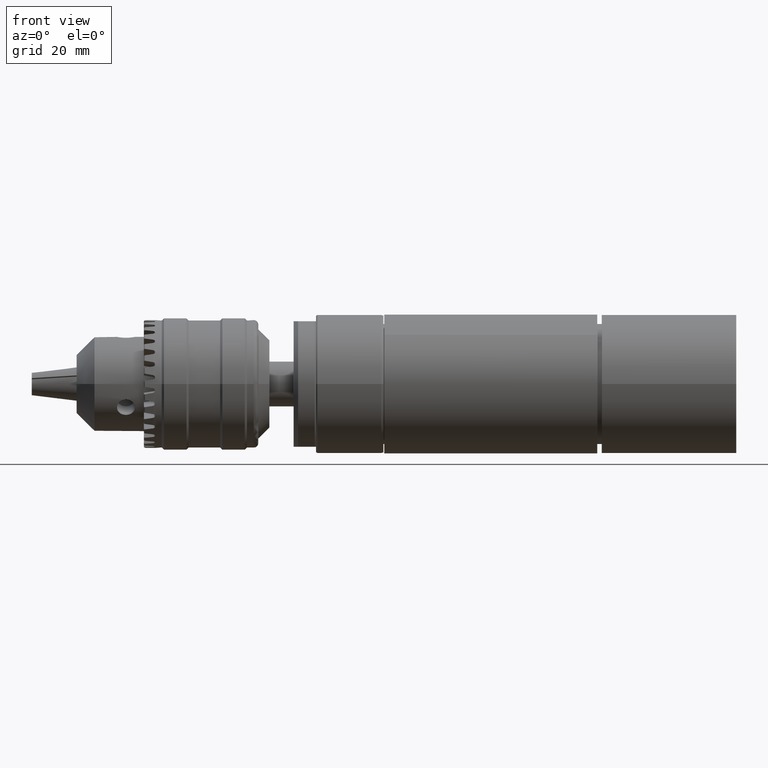
[diagram: clean part render]
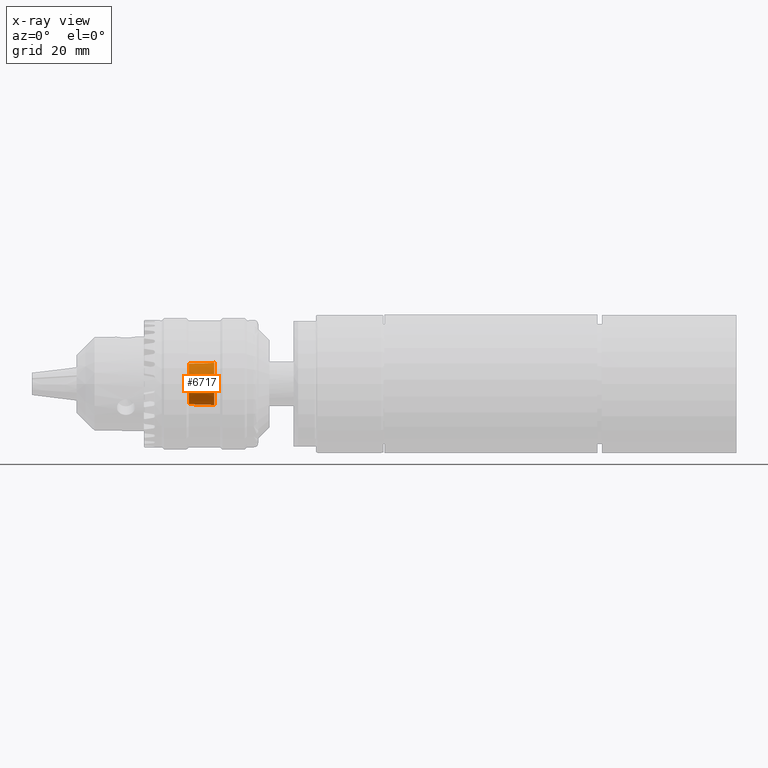
[diagram: x-ray — body ghosted, one internal face saturated and labeled with its STEP entity id]
A machine part, front view, then the same camera in x-ray: the body is ghosted and one INTERNAL B-rep face — a face not visible from any outside direction — is saturated and labeled: STEP entity #6717.
In plain terms, the highlighted conical surface has half-angle 1.429 deg.
Its self-contained STEP definition (entity closure, byte-faithful):
#275=CONICAL_SURFACE('',#7395,4.77897855143623,0.0249337736939914);
#769=LINE('',#12032,#1264);
#1264=VECTOR('',#9202,4.77897855143623);
#2033=FACE_OUTER_BOUND('',#2405,.T.);
#2405=EDGE_LOOP('',(#6139,#6140,#6141,#6142,#6143,#6144,#6145));
#2470=CIRCLE('',#6913,4.7);
#2471=CIRCLE('',#6914,4.7);
#2472=CIRCLE('',#6915,4.7);
#2548=CIRCLE('',#7013,4.55795710287245);
#2549=CIRCLE('',#7014,4.55795710287245);
#2874=VERTEX_POINT('',#9991);
#2875=VERTEX_POINT('',#9992);
#2876=VERTEX_POINT('',#9994);
#2960=VERTEX_POINT('',#10306);
#2961=VERTEX_POINT('',#10307);
#3604=EDGE_CURVE('',#2874,#2875,#2470,.T.);
#3605=EDGE_CURVE('',#2876,#2874,#2471,.T.);
#3606=EDGE_CURVE('',#2875,#2876,#2472,.T.);
#3709=EDGE_CURVE('',#2960,#2961,#2548,.T.);
#3710=EDGE_CURVE('',#2961,#2960,#2549,.T.);
#4248=EDGE_CURVE('',#2876,#2961,#769,.T.);
#6139=ORIENTED_EDGE('',*,*,#3604,.T.);
#6140=ORIENTED_EDGE('',*,*,#3606,.T.);
#6141=ORIENTED_EDGE('',*,*,#4248,.T.);
#6142=ORIENTED_EDGE('',*,*,#3709,.F.);
#6143=ORIENTED_EDGE('',*,*,#3710,.F.);
#6144=ORIENTED_EDGE('',*,*,#4248,.F.);
#6145=ORIENTED_EDGE('',*,*,#3605,.T.);
#6717=ADVANCED_FACE('',(#2033),#275,.F.);
#6913=AXIS2_PLACEMENT_3D('',#9993,#7950,#7951);
#6914=AXIS2_PLACEMENT_3D('',#9995,#7952,#7953);
#6915=AXIS2_PLACEMENT_3D('',#9996,#7954,#7955);
#7013=AXIS2_PLACEMENT_3D('',#10308,#8171,#8172);
#7014=AXIS2_PLACEMENT_3D('',#10309,#8173,#8174);
#7395=AXIS2_PLACEMENT_3D('',#12031,#9200,#9201);
#7950=DIRECTION('center_axis',(1.,-1.21770517779741E-17,1.35062590094621E-15));
#7951=DIRECTION('ref_axis',(1.53432292081831E-15,1.22464679914733E-16,-1.));
#7952=DIRECTION('center_axis',(1.,-1.21770517779741E-17,1.35062590094621E-15));
#7953=DIRECTION('ref_axis',(1.53432292081831E-15,1.22464679914733E-16,-1.));
#7954=DIRECTION('center_axis',(1.,-1.21770517779741E-17,1.35062590094621E-15));
#7955=DIRECTION('ref_axis',(1.53432292081831E-15,1.22464679914733E-16,-1.));
#8171=DIRECTION('center_axis',(1.,2.45022473231302E-16,-9.49410759657492E-16));
#8172=DIRECTION('ref_axis',(-6.12323399573692E-17,1.,-8.38142190496947E-16));
#8173=DIRECTION('center_axis',(1.,2.45022473231302E-16,-9.49410759657492E-16));
#8174=DIRECTION('ref_axis',(-6.12323399573692E-17,1.,-8.38142190496947E-16));
#9200=DIRECTION('center_axis',(1.,2.45022473231302E-16,-9.49410759657492E-16));
#9201=DIRECTION('ref_axis',(-6.12323399573692E-17,1.,-8.38142190496947E-16));
#9202=DIRECTION('',(-0.999689169568616,0.0249311902485763,9.31272961728554E-16));
#9991=CARTESIAN_POINT('',(-86.3999999999999,9.67685062850011E-16,-4.70000000000004));
#9992=CARTESIAN_POINT('',(-86.3999999999999,-7.59066923947734E-16,4.69999999999995));
#9993=CARTESIAN_POINT('Origin',(-86.3999999999999,3.92101067250766E-16,
-4.34901540104679E-14));
#9994=CARTESIAN_POINT('',(-86.3999999999999,-4.69999999999996,-3.52731812948206E-14));
#9995=CARTESIAN_POINT('Origin',(-86.3999999999999,3.92101067250766E-16,
-4.34901540104679E-14));
#9996=CARTESIAN_POINT('Origin',(-86.3999999999999,3.92101067250766E-16,
-4.34901540104679E-14));
#10306=CARTESIAN_POINT('',(-92.0956264204289,4.55795710287246,-3.70495927384049E-14));
#10307=CARTESIAN_POINT('',(-92.0956264204289,-4.55795710287244,-2.9967349195288E-14));
#10308=CARTESIAN_POINT('Origin',(-92.0956264204289,8.57578656309558E-15,
-3.32293765880122E-14));
#10309=CARTESIAN_POINT('Origin',(-92.0956264204289,8.57578656309558E-15,
-3.32293765880122E-14));
#12031=CARTESIAN_POINT('Origin',(-83.2331234204289,1.07472989671754E-14,
-4.1643532293709E-14));
#12032=CARTESIAN_POINT('',(-83.2331234204289,-4.77897855143622,-3.82233248208914E-14));